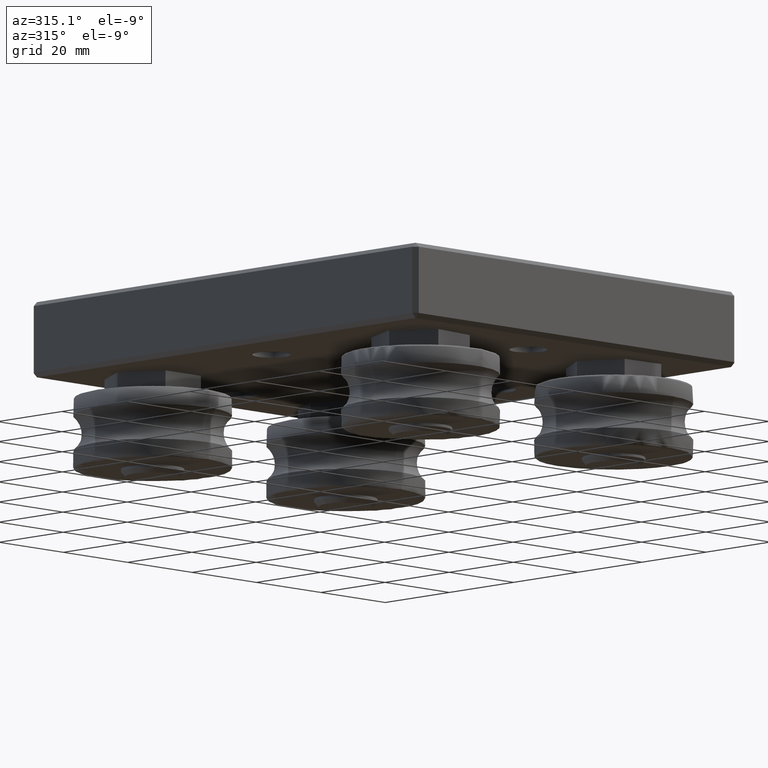
[diagram: clean part render]
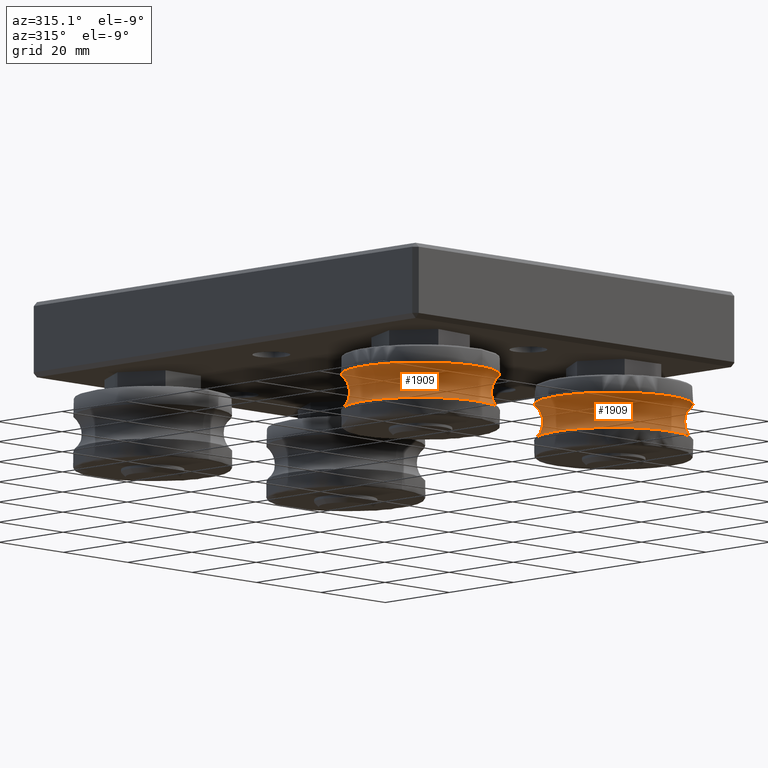
[diagram: same view with one multi-face feature highlighted, each face labeled with its STEP entity id]
A machine part, auxiliary view. The highlighted faces form ONE feature: a constant-radius fillet chain: 2 tangent blend faces with common blend radius 5.025 mm. The faces share edges in the B-rep.
Their STEP definitions:
[1] entity #1909 (Torus):
#51=TOROIDAL_SURFACE('',#2173,20.6499999999868,5.025);
#279=CIRCLE('',#2174,17.4999999999996);
#280=CIRCLE('',#2175,17.5);
#281=CIRCLE('',#2176,5.025);
#282=CIRCLE('',#2177,17.5);
#283=CIRCLE('',#2178,17.5);
#284=CIRCLE('',#2179,17.5);
#285=CIRCLE('',#2180,17.5);
#400=FACE_OUTER_BOUND('',#547,.T.);
#547=EDGE_LOOP('',(#1574,#1575,#1576,#1577,#1578,#1579,#1580,#1581));
#957=VERTEX_POINT('',#3556);
#958=VERTEX_POINT('',#3557);
#959=VERTEX_POINT('',#3559);
#960=VERTEX_POINT('',#3561);
#961=VERTEX_POINT('',#3563);
#962=VERTEX_POINT('',#3565);
#1169=EDGE_CURVE('',#957,#958,#279,.F.);
#1170=EDGE_CURVE('',#958,#959,#280,.F.);
#1171=EDGE_CURVE('',#959,#960,#281,.T.);
#1172=EDGE_CURVE('',#960,#961,#282,.T.);
#1173=EDGE_CURVE('',#961,#962,#283,.T.);
#1174=EDGE_CURVE('',#962,#960,#284,.T.);
#1175=EDGE_CURVE('',#959,#957,#285,.F.);
#1574=ORIENTED_EDGE('',*,*,#1169,.T.);
#1575=ORIENTED_EDGE('',*,*,#1170,.T.);
#1576=ORIENTED_EDGE('',*,*,#1171,.T.);
#1577=ORIENTED_EDGE('',*,*,#1172,.T.);
#1578=ORIENTED_EDGE('',*,*,#1173,.T.);
#1579=ORIENTED_EDGE('',*,*,#1174,.T.);
#1580=ORIENTED_EDGE('',*,*,#1171,.F.);
#1581=ORIENTED_EDGE('',*,*,#1175,.T.);
#1909=ADVANCED_FACE('',(#400),#51,.F.);
#2173=AXIS2_PLACEMENT_3D('',#3555,#2639,#2640);
#2174=AXIS2_PLACEMENT_3D('',#3558,#2641,#2642);
#2175=AXIS2_PLACEMENT_3D('',#3560,#2643,#2644);
#2176=AXIS2_PLACEMENT_3D('',#3562,#2645,#2646);
#2177=AXIS2_PLACEMENT_3D('',#3564,#2647,#2648);
#2178=AXIS2_PLACEMENT_3D('',#3566,#2649,#2650);
#2179=AXIS2_PLACEMENT_3D('',#3567,#2651,#2652);
#2180=AXIS2_PLACEMENT_3D('',#3568,#2653,#2654);
#2639=DIRECTION('center_axis',(0.,0.,-1.));
#2640=DIRECTION('ref_axis',(-1.,0.,0.));
#2641=DIRECTION('center_axis',(1.98389456597708E-15,0.,-1.));
#2642=DIRECTION('ref_axis',(-1.,0.,-1.98389456597708E-15));
#2643=DIRECTION('center_axis',(-1.98389456597707E-15,0.,-1.));
#2644=DIRECTION('ref_axis',(-1.,0.,1.98389456597707E-15));
#2645=DIRECTION('center_axis',(1.22464679914735E-16,1.,0.));
#2646=DIRECTION('ref_axis',(1.,-1.22464679914735E-16,0.));
#2647=DIRECTION('center_axis',(8.70120689653672E-16,0.,-1.));
#2648=DIRECTION('ref_axis',(-1.,0.,-8.70120689653672E-16));
#2649=DIRECTION('center_axis',(0.,0.,-1.));
#2650=DIRECTION('ref_axis',(-1.,0.,0.));
#2651=DIRECTION('center_axis',(8.70120689653672E-16,0.,-1.));
#2652=DIRECTION('ref_axis',(-1.,0.,-8.70120689653672E-16));
#2653=DIRECTION('center_axis',(-1.98389456597707E-15,0.,-1.));
#2654=DIRECTION('ref_axis',(-1.,0.,1.98389456597707E-15));
#3555=CARTESIAN_POINT('Origin',(0.,0.,-22.3500000001203));
#3556=CARTESIAN_POINT('',(1.03181352351101E-11,17.500000000012,-26.2651149409818));
#3557=CARTESIAN_POINT('',(1.14352971536391E-11,-17.4999999999877,-26.2651149409818));
#3558=CARTESIAN_POINT('Origin',(1.10942254597084E-11,1.2115308756222E-11,
-26.2651149409632));
#3559=CARTESIAN_POINT('',(17.5000000000119,-2.14313189850989E-15,-26.2651149409818));
#3560=CARTESIAN_POINT('Origin',(1.18873911500323E-11,1.2115308756222E-11,
-26.2651149409818));
#3561=CARTESIAN_POINT('',(17.5000000000119,-2.14313189850787E-15,-18.4348850592588));
#3562=CARTESIAN_POINT('Origin',(20.6499999999868,-2.52889564023767E-15,
-22.3500000001203));
#3563=CARTESIAN_POINT('',(-1.07153055959535E-15,-17.4999999999997,-18.4348850592588));
#3564=CARTESIAN_POINT('Origin',(1.18828972004595E-11,1.21291865440298E-11,
-18.4348850592588));
#3565=CARTESIAN_POINT('',(1.14352971536391E-11,17.5000000000119,-18.4348850592588));
#3566=CARTESIAN_POINT('Origin',(1.14352971536391E-11,1.21291865440298E-11,
-18.4348850592774));
#3567=CARTESIAN_POINT('Origin',(1.18828972004595E-11,1.21291865440298E-11,
-18.4348850592588));
#3568=CARTESIAN_POINT('Origin',(1.18873911500323E-11,1.2115308756222E-11,
-26.2651149409818));
[2] entity #1909 (Torus):
#51=TOROIDAL_SURFACE('',#2173,20.6499999999868,5.025);
#279=CIRCLE('',#2174,17.4999999999996);
#280=CIRCLE('',#2175,17.5);
#281=CIRCLE('',#2176,5.025);
#282=CIRCLE('',#2177,17.5);
#283=CIRCLE('',#2178,17.5);
#284=CIRCLE('',#2179,17.5);
#285=CIRCLE('',#2180,17.5);
#400=FACE_OUTER_BOUND('',#547,.T.);
#547=EDGE_LOOP('',(#1574,#1575,#1576,#1577,#1578,#1579,#1580,#1581));
#957=VERTEX_POINT('',#3556);
#958=VERTEX_POINT('',#3557);
#959=VERTEX_POINT('',#3559);
#960=VERTEX_POINT('',#3561);
#961=VERTEX_POINT('',#3563);
#962=VERTEX_POINT('',#3565);
#1169=EDGE_CURVE('',#957,#958,#279,.F.);
#1170=EDGE_CURVE('',#958,#959,#280,.F.);
#1171=EDGE_CURVE('',#959,#960,#281,.T.);
#1172=EDGE_CURVE('',#960,#961,#282,.T.);
#1173=EDGE_CURVE('',#961,#962,#283,.T.);
#1174=EDGE_CURVE('',#962,#960,#284,.T.);
#1175=EDGE_CURVE('',#959,#957,#285,.F.);
#1574=ORIENTED_EDGE('',*,*,#1169,.T.);
#1575=ORIENTED_EDGE('',*,*,#1170,.T.);
#1576=ORIENTED_EDGE('',*,*,#1171,.T.);
#1577=ORIENTED_EDGE('',*,*,#1172,.T.);
#1578=ORIENTED_EDGE('',*,*,#1173,.T.);
#1579=ORIENTED_EDGE('',*,*,#1174,.T.);
#1580=ORIENTED_EDGE('',*,*,#1171,.F.);
#1581=ORIENTED_EDGE('',*,*,#1175,.T.);
#1909=ADVANCED_FACE('',(#400),#51,.F.);
#2173=AXIS2_PLACEMENT_3D('',#3555,#2639,#2640);
#2174=AXIS2_PLACEMENT_3D('',#3558,#2641,#2642);
#2175=AXIS2_PLACEMENT_3D('',#3560,#2643,#2644);
#2176=AXIS2_PLACEMENT_3D('',#3562,#2645,#2646);
#2177=AXIS2_PLACEMENT_3D('',#3564,#2647,#2648);
#2178=AXIS2_PLACEMENT_3D('',#3566,#2649,#2650);
#2179=AXIS2_PLACEMENT_3D('',#3567,#2651,#2652);
#2180=AXIS2_PLACEMENT_3D('',#3568,#2653,#2654);
#2639=DIRECTION('center_axis',(0.,0.,-1.));
#2640=DIRECTION('ref_axis',(-1.,0.,0.));
#2641=DIRECTION('center_axis',(1.98389456597708E-15,0.,-1.));
#2642=DIRECTION('ref_axis',(-1.,0.,-1.98389456597708E-15));
#2643=DIRECTION('center_axis',(-1.98389456597707E-15,0.,-1.));
#2644=DIRECTION('ref_axis',(-1.,0.,1.98389456597707E-15));
#2645=DIRECTION('center_axis',(1.22464679914735E-16,1.,0.));
#2646=DIRECTION('ref_axis',(1.,-1.22464679914735E-16,0.));
#2647=DIRECTION('center_axis',(8.70120689653672E-16,0.,-1.));
#2648=DIRECTION('ref_axis',(-1.,0.,-8.70120689653672E-16));
#2649=DIRECTION('center_axis',(0.,0.,-1.));
#2650=DIRECTION('ref_axis',(-1.,0.,0.));
#2651=DIRECTION('center_axis',(8.70120689653672E-16,0.,-1.));
#2652=DIRECTION('ref_axis',(-1.,0.,-8.70120689653672E-16));
#2653=DIRECTION('center_axis',(-1.98389456597707E-15,0.,-1.));
#2654=DIRECTION('ref_axis',(-1.,0.,1.98389456597707E-15));
#3555=CARTESIAN_POINT('Origin',(0.,0.,-22.3500000001203));
#3556=CARTESIAN_POINT('',(1.03181352351101E-11,17.500000000012,-26.2651149409818));
#3557=CARTESIAN_POINT('',(1.14352971536391E-11,-17.4999999999877,-26.2651149409818));
#3558=CARTESIAN_POINT('Origin',(1.10942254597084E-11,1.2115308756222E-11,
-26.2651149409632));
#3559=CARTESIAN_POINT('',(17.5000000000119,-2.14313189850989E-15,-26.2651149409818));
#3560=CARTESIAN_POINT('Origin',(1.18873911500323E-11,1.2115308756222E-11,
-26.2651149409818));
#3561=CARTESIAN_POINT('',(17.5000000000119,-2.14313189850787E-15,-18.4348850592588));
#3562=CARTESIAN_POINT('Origin',(20.6499999999868,-2.52889564023767E-15,
-22.3500000001203));
#3563=CARTESIAN_POINT('',(-1.07153055959535E-15,-17.4999999999997,-18.4348850592588));
#3564=CARTESIAN_POINT('Origin',(1.18828972004595E-11,1.21291865440298E-11,
-18.4348850592588));
#3565=CARTESIAN_POINT('',(1.14352971536391E-11,17.5000000000119,-18.4348850592588));
#3566=CARTESIAN_POINT('Origin',(1.14352971536391E-11,1.21291865440298E-11,
-18.4348850592774));
#3567=CARTESIAN_POINT('Origin',(1.18828972004595E-11,1.21291865440298E-11,
-18.4348850592588));
#3568=CARTESIAN_POINT('Origin',(1.18873911500323E-11,1.2115308756222E-11,
-26.2651149409818));